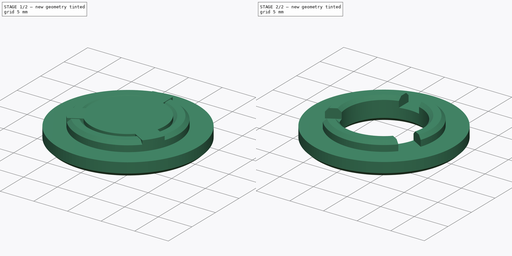
[diagram: build sequence overview — one tinted view per stage of 2, left to right]
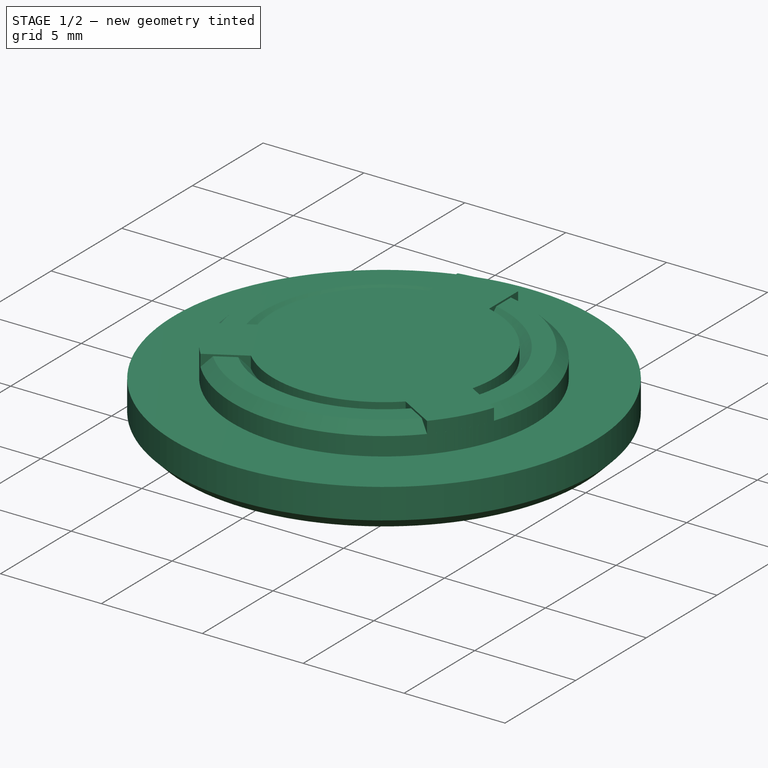
[diagram: stage 1 of 2 — iso view after this stage's code; geometry added in this stage tinted green]
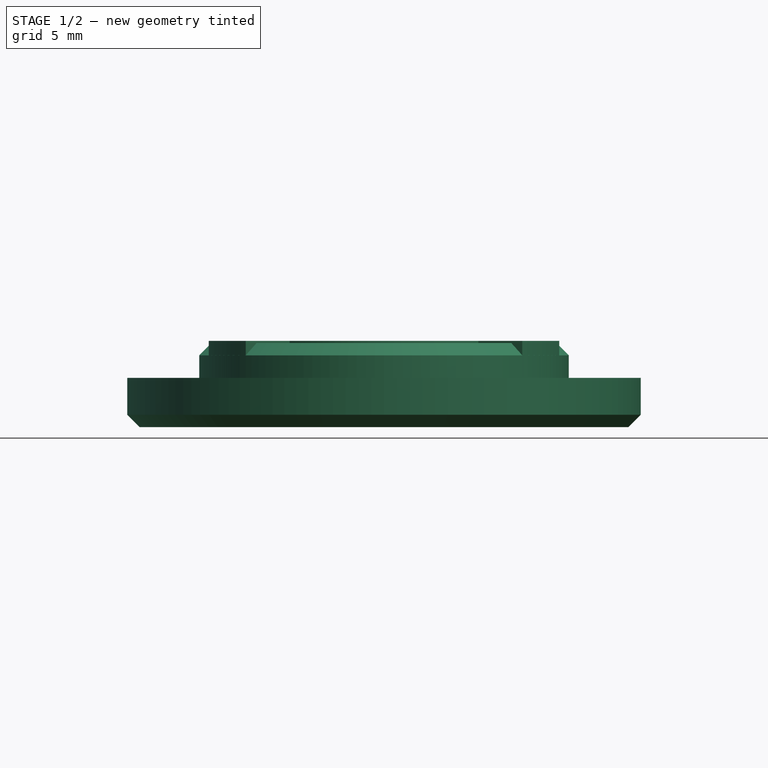
[diagram: stage 1 of 2 — front view after this stage's code; geometry added in this stage tinted green]
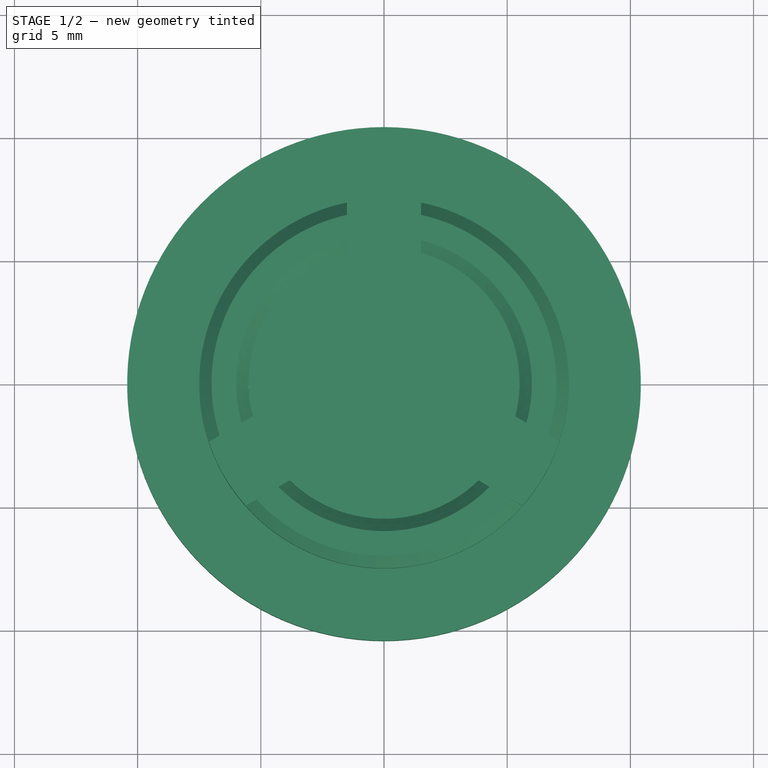
[diagram: stage 1 of 2 — top view after this stage's code; geometry added in this stage tinted green]
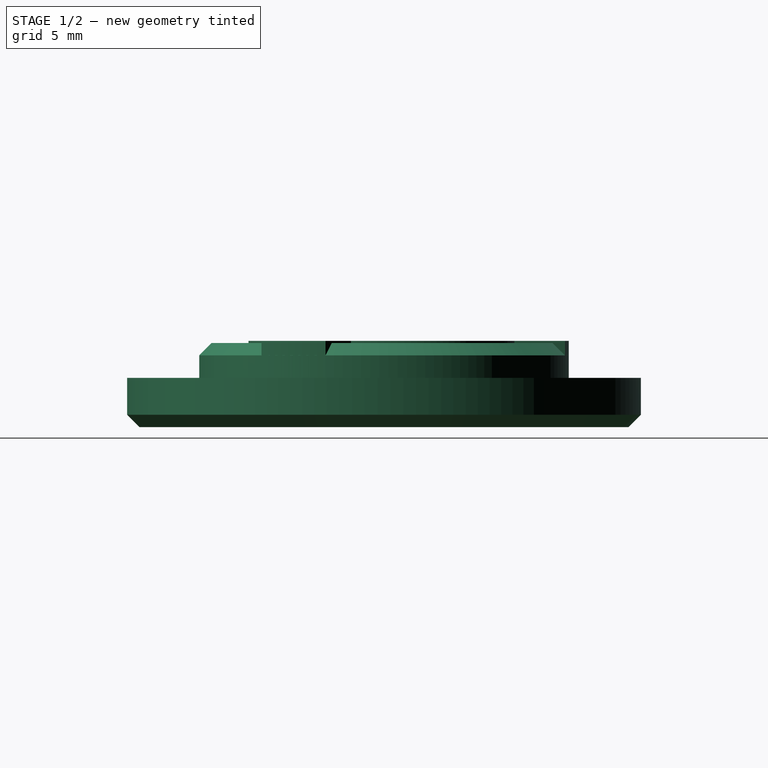
[diagram: stage 1 of 2 — right view after this stage's code; geometry added in this stage tinted green]
FCSTD DOCUMENT  (FreeCAD 0.20R29410 (Git))
Label: cell_protection_ring
License: All rights reserved
LicenseURL: http://en.wikipedia.org/wiki/All_rights_reserved
objects: Sketcher::SketchObject×2, Spreadsheet::Sheet×1, Part::Revolution×1, Part::Extrusion×1, Part::Cut×1
note: 5 computed .brp shape members not serialized (recipe doc carries the construction recipe); baked Part::Feature solids carry a one-line shape summary decoded from their .brp

FEATURE [Spreadsheet::Sheet] Spreadsheet  label="Param"
  cells = A2=Cell_Diameter; B2(Cell_Diameter)=20.85; A3=Disc_Height; B3(Disc_Height)=2; A4=Anode_Diameter; B4(Anode_Diameter)=11; A5=Ring_Diameter; B5(Ring_Diameter)=15; A6=Ring_Height; B6(Ring_Height)=1.5; A7=Leg_Width; B7(Leg_Width)=3; A8=Leg_Diameter; B8(Leg_Diameter)=15; A9=Chamfer; B9(Chamfer)=0.5
FEATURE [Sketcher::SketchObject] Sketch
  FullyConstrained = true
  Placement = pos=(0,0,0) rot=(0.57735,0.57735,0.57735;2.0944rad)
  expr: Constraints[16] = <<Param>>.Anode_Diameter / 2
  expr: Constraints[41] = <<Param>>.Chamfer
  expr: Constraints[46] = <<Param>>.Disc_Height
  expr: Constraints[47] = <<Param>>.Ring_Height
  expr: Constraints[48] = <<Param>>.Cell_Diameter / 2
  expr: Constraints[49] = <<Param>>.Ring_Diameter / 2
  sketch-geometry (18):
    g0: LineSegment StartX=-10.425 StartY=0.5 StartZ=0 EndX=-9.925 EndY=0 EndZ=0
    g1: LineSegment StartX=-9.925 StartY=0 StartZ=0 EndX=-6 EndY=0 EndZ=0
    g2: LineSegment StartX=-6 StartY=0 StartZ=0 EndX=-5.5 EndY=0.5 EndZ=0
    g3: LineSegment StartX=-5.5 StartY=0.5 StartZ=0 EndX=-5.5 EndY=2.91421 EndZ=0
    g4: LineSegment StartX=-5.5 StartY=2.91421 StartZ=0 EndX=-6 EndY=3.41421 EndZ=0
    g5: LineSegment StartX=-6 StartY=3.41421 StartZ=0 EndX=-7 EndY=3.41421 EndZ=0
    g6: LineSegment StartX=-7 StartY=3.41421 StartZ=0 EndX=-7.5 EndY=2.91421 EndZ=0
    g7: LineSegment StartX=-7.5 StartY=2.91421 StartZ=0 EndX=-7.5 EndY=2 EndZ=0
    g8: LineSegment StartX=-7.5 StartY=2 StartZ=0 EndX=-10.425 EndY=2 EndZ=0
    g9: LineSegment StartX=-10.425 StartY=2 StartZ=0 EndX=-10.425 EndY=0.5 EndZ=0
    g10: LineSegment StartX=-10.425 StartY=0.5 StartZ=0 EndX=-10.425 EndY=0 EndZ=0
    g11: LineSegment StartX=-10.425 StartY=0 StartZ=0 EndX=-9.925 EndY=0 EndZ=0
    g12: LineSegment StartX=-5.5 StartY=0.5 StartZ=0 EndX=-5.5 EndY=0 EndZ=0
    g13: LineSegment StartX=-6 StartY=0 StartZ=0 EndX=-5.5 EndY=0 EndZ=0
    g14: LineSegment StartX=-7.5 StartY=2.91421 StartZ=0 EndX=-7.5 EndY=3.41421 EndZ=0
    g15: LineSegment StartX=-7 StartY=3.41421 StartZ=0 EndX=-7.5 EndY=3.41421 EndZ=0
    g16: LineSegment StartX=-6 StartY=3.41421 StartZ=0 EndX=-5.5 EndY=3.41421 EndZ=0
    g17: LineSegment StartX=-5.5 StartY=2.91421 StartZ=0 EndX=-5.5 EndY=3.41421 EndZ=0
  constraints (50):
    c: Coincident(g1,g0)
    c: Horizontal(g1)
    c: Coincident(g2,g1)
    c: Coincident(g3,g2)
    c: Vertical(g3)
    c: Coincident(g4,g3)
    c: Coincident(g5,g4)
    c: Horizontal(g5)
    c: Coincident(g6,g5)
    c: Coincident(g7,g6)
    c: Vertical(g7)
    c: Coincident(g8,g7)
    c: Horizontal(g8)
    c: Coincident(g9,g8)
    c: Coincident(g9,g0)
    c: Vertical(g9)
    c: Distance(g2,g-2) = 5.5
    c: Coincident(g10,g0)
    c: Vertical(g10)
    c: Coincident(g11,g10)
    c: Coincident(g11,g0)
    c: Coincident(g12,g2)
    c: Vertical(g12)
    c: Coincident(g13,g12)
    c: Horizontal(g13)
    c: Equal(g13,g12)
    c: Equal(g11,g10)
    c: Horizontal(g11)
    c: Coincident(g1,g13)
    c: Coincident(g14,g6)
    c: Vertical(g14)
    c: Coincident(g15,g5)
    c: Coincident(g15,g14)
    c: Horizontal(g15)
    c: Coincident(g16,g4)
    c: Horizontal(g16)
    c: Coincident(g17,g3)
    c: Coincident(g17,g16)
    c: Vertical(g17)
    c: Equal(g15,g14)
    c: Equal(g16,g17)
    c: Distance(g13) = 0.5
    c: Equal(g16,g13)
    c: Equal(g13,g15)
    c: Equal(g15,g11)
    c: PointOnObject(g1,g-1)
    c: Distance(g8,g-1) = 2
    c: Distance(g5,g7) = 1.5
    c: Distance(g8,g-2) = 10.425
    c: Distance(g7,g-2) = 7.5
FEATURE [Part::Revolution] Revolve
  Angle = 360
  Axis = (0,0,1)
  Base = (0,0,0)
  FaceMakerClass = Part::FaceMakerBullseye
  Solid = true
  Source = -> Sketch
  Symmetric = true
FEATURE [Sketcher::SketchObject] Sketch001
  FullyConstrained = true
  expr: Constraints[35] = <<Param>>.Anode_Diameter
  expr: Constraints[38] = <<Param>>.Leg_Diameter
  expr: Constraints[39] = <<Param>>.Leg_Width
  expr: Constraints[40] = <<Param>>.Leg_Width
  expr: Constraints[41] = <<Param>>.Leg_Width
  sketch-geometry (27):
    g0: ArcOfCircle CenterX=0 CenterY=0 CenterZ=0 NormalX=0 NormalY=0 NormalZ=1 AngleXU=0 Radius=7.5 StartAngle=1.36944 EndAngle=1.77215
    g1: ArcOfCircle CenterX=0 CenterY=0 CenterZ=0 NormalX=0 NormalY=0 NormalZ=1 AngleXU=0 Radius=5.5 StartAngle=6.03581 EndAngle=7.57776
    g2: ArcOfCircle CenterX=0 CenterY=0 CenterZ=0 NormalX=0 NormalY=0 NormalZ=1 AngleXU=0 Radius=5.5 StartAngle=1.84702 EndAngle=3.38896
    g3: ArcOfCircle CenterX=0 CenterY=0 CenterZ=0 NormalX=0 NormalY=0 NormalZ=1 AngleXU=0 Radius=7.5 StartAngle=3.46383 EndAngle=3.86655
    g4: ArcOfCircle CenterX=0 CenterY=0 CenterZ=0 NormalX=0 NormalY=0 NormalZ=1 AngleXU=0 Radius=7.5 StartAngle=5.55823 EndAngle=5.96094
    g5: ArcOfCircle CenterX=0 CenterY=0 CenterZ=0 NormalX=0 NormalY=0 NormalZ=1 AngleXU=0 Radius=5.5 StartAngle=3.94142 EndAngle=5.48336
    g6: LineSegment StartX=1.5 StartY=7.34847 StartZ=0 EndX=1.5 EndY=5.2915 EndZ=0
    g7: LineSegment StartX=-1.5 StartY=7.34847 StartZ=0 EndX=-1.5 EndY=5.2915 EndZ=0
    g8: LineSegment StartX=7.11396 StartY=-2.3752 StartZ=0 EndX=5.33258 EndY=-1.34671 EndZ=0
    g9: LineSegment StartX=5.61396 StartY=-4.97327 StartZ=0 EndX=3.83258 EndY=-3.94479 EndZ=0
    g10: LineSegment StartX=-5.61396 StartY=-4.97327 StartZ=0 EndX=-3.83258 EndY=-3.94479 EndZ=0
    g11: LineSegment StartX=-5.33258 StartY=-1.34671 StartZ=0 EndX=-7.11396 EndY=-2.3752 EndZ=0
    g12: LineSegment StartX=0 StartY=6.31999 StartZ=0 EndX=0 EndY=0 EndZ=0
    g13: LineSegment StartX=0 StartY=0 StartZ=0 EndX=-5.47327 EndY=-3.15999 EndZ=0
    g14: LineSegment StartX=0 StartY=0 StartZ=0 EndX=5.47327 EndY=-3.15999 EndZ=0
    g15: LineSegment StartX=-5.47327 StartY=-3.15999 StartZ=0 EndX=-5.61396 EndY=-4.97327 EndZ=0
    g16: LineSegment StartX=-5.47327 StartY=-3.15999 StartZ=0 EndX=-7.11396 EndY=-2.3752 EndZ=0
    g17: LineSegment StartX=-5.47327 StartY=-3.15999 StartZ=0 EndX=-5.33258 EndY=-1.34671 EndZ=0
    g18: LineSegment StartX=-5.47327 StartY=-3.15999 StartZ=0 EndX=-3.83258 EndY=-3.94479 EndZ=0
    g19: LineSegment StartX=-1.5 StartY=5.2915 StartZ=0 EndX=0 EndY=6.31999 EndZ=0
    g20: LineSegment StartX=1.5 StartY=5.2915 StartZ=0 EndX=0 EndY=6.31999 EndZ=0
    g21: LineSegment StartX=1.5 StartY=7.34847 StartZ=0 EndX=0 EndY=6.31999 EndZ=0
    g22: LineSegment StartX=-1.5 StartY=7.34847 StartZ=0 EndX=0 EndY=6.31999 EndZ=0
    g23: LineSegment StartX=3.83258 StartY=-3.94479 StartZ=0 EndX=5.47327 EndY=-3.15999 EndZ=0
    g24: LineSegment StartX=5.61396 StartY=-4.97327 StartZ=0 EndX=5.47327 EndY=-3.15999 EndZ=0
    g25: LineSegment StartX=5.33258 StartY=-1.34671 StartZ=0 EndX=5.47327 EndY=-3.15999 EndZ=0
    g26: LineSegment StartX=5.47327 StartY=-3.15999 StartZ=0 EndX=7.11396 EndY=-2.3752 EndZ=0
  constraints (69):
    c: Coincident(g0,g-1)
    c: Coincident(g1,g0)
    c: Coincident(g2,g0)
    c: Coincident(g3,g0)
    c: Coincident(g4,g0)
    c: Coincident(g5,g0)
    c: Coincident(g6,g0)
    c: Coincident(g6,g1)
    c: Coincident(g7,g0)
    c: Coincident(g7,g2)
    c: Coincident(g8,g4)
    c: Coincident(g8,g1)
    c: Coincident(g9,g4)
    c: Coincident(g9,g5)
    c: Coincident(g10,g3)
    c: Coincident(g10,g5)
    c: Coincident(g11,g2)
    c: Coincident(g11,g3)
    c: Coincident(g12,g0)
    c: Coincident(g13,g0)
    c: Coincident(g14,g0)
    c: Coincident(g15,g13)
    c: Coincident(g15,g3)
    c: Coincident(g16,g13)
    c: Coincident(g16,g3)
    c: Coincident(g17,g13)
    c: Coincident(g17,g2)
    c: Coincident(g18,g13)
    c: Coincident(g18,g5)
    c: Parallel(g15,g17)
    c: Parallel(g18,g16)
    c: Parallel(g13,g11)
    c: Parallel(g13,g10)
    c: Equal(g5,g2)
    c: Equal(g5,g1)
    c: Diameter(g5) = 11
    c: Equal(g0,g3)
    c: Equal(g0,g4)
    c: Diameter(g0) = 15
    c: Distance(g3,g3) = 3
    c: Distance(g4,g4) = 3
    c: Distance(g0,g0) = 3
    c: Coincident(g19,g2)
    c: Coincident(g19,g12)
    c: Coincident(g20,g1)
    c: Coincident(g20,g12)
    c: Coincident(g21,g0)
    c: Coincident(g21,g12)
    c: Coincident(g22,g0)
    c: Coincident(g22,g12)
    c: Parallel(g21,g19)
    c: Parallel(g22,g20)
    c: Parallel(g12,g6)
    c: Parallel(g12,g7)
    c: Coincident(g23,g5)
    c: Coincident(g23,g14)
    c: Coincident(g24,g4)
    c: Coincident(g24,g14)
    c: Coincident(g25,g1)
    c: Coincident(g25,g14)
    c: Coincident(g26,g14)
    c: Coincident(g26,g4)
    c: Parallel(g24,g25)
    c: Parallel(g23,g26)
    c: Parallel(g14,g9)
    c: Parallel(g14,g8)
    c: Angle(g14,g12) = 2.0944
    c: Angle(g12,g13) = 2.0944
    c: Parallel(g12,g-2)
FEATURE [Part::Extrusion] Extrude
  Base = -> Sketch001
  Dir = (0,0,1)
  DirMode = 2
  FaceMakerClass = Part::FaceMakerBullseye
  LengthFwd = 3.5
  LengthRev = -2
  Solid = true
  Symmetric = false
  expr: LengthFwd = <<Param>>.Disc_Height + <<Param>>.Ring_Height
  expr: LengthRev = -<<Param>>.Disc_Height
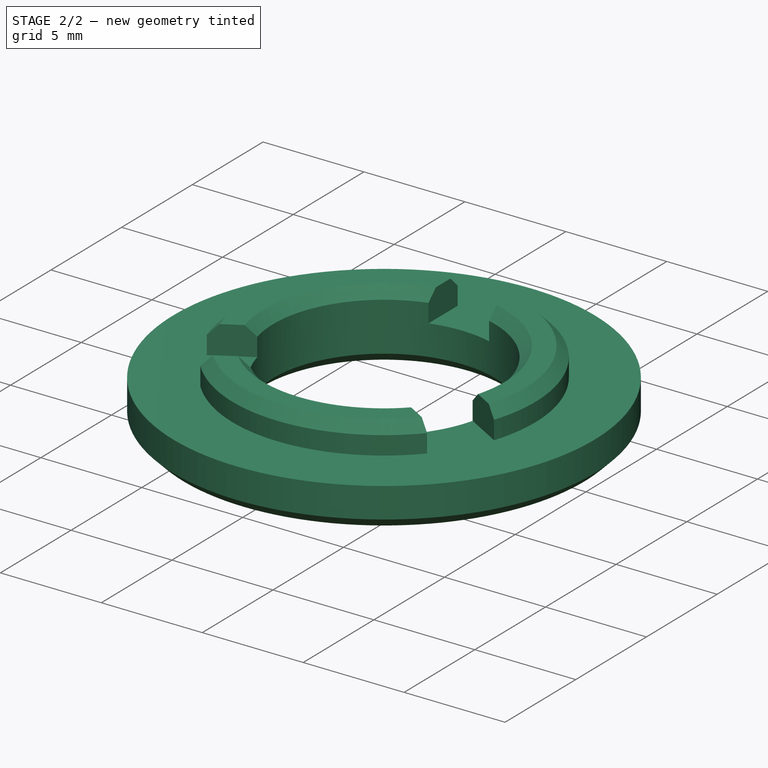
[diagram: stage 2 of 2 — iso view after this stage's code; geometry added in this stage tinted green]
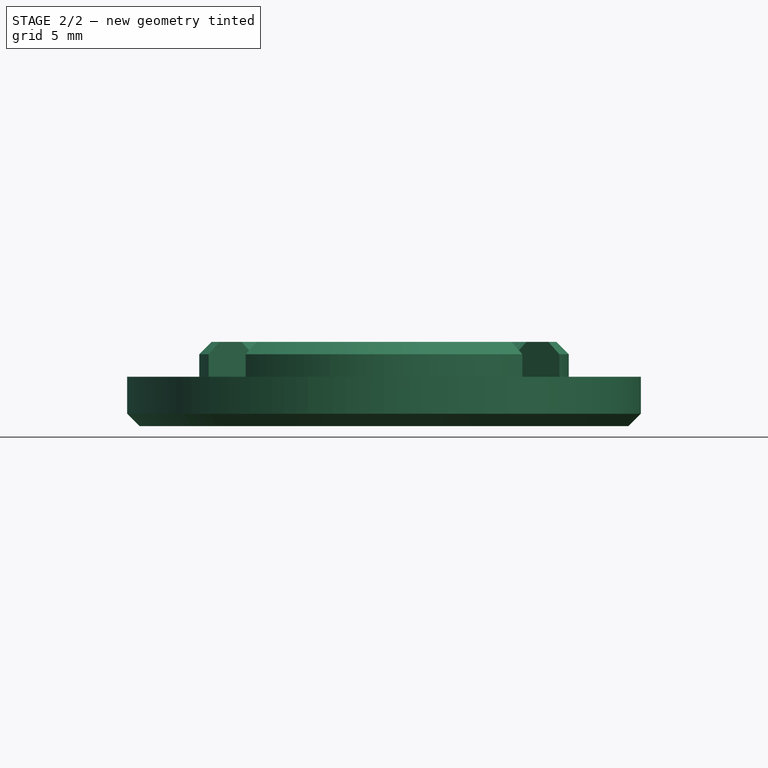
[diagram: stage 2 of 2 — front view after this stage's code; geometry added in this stage tinted green]
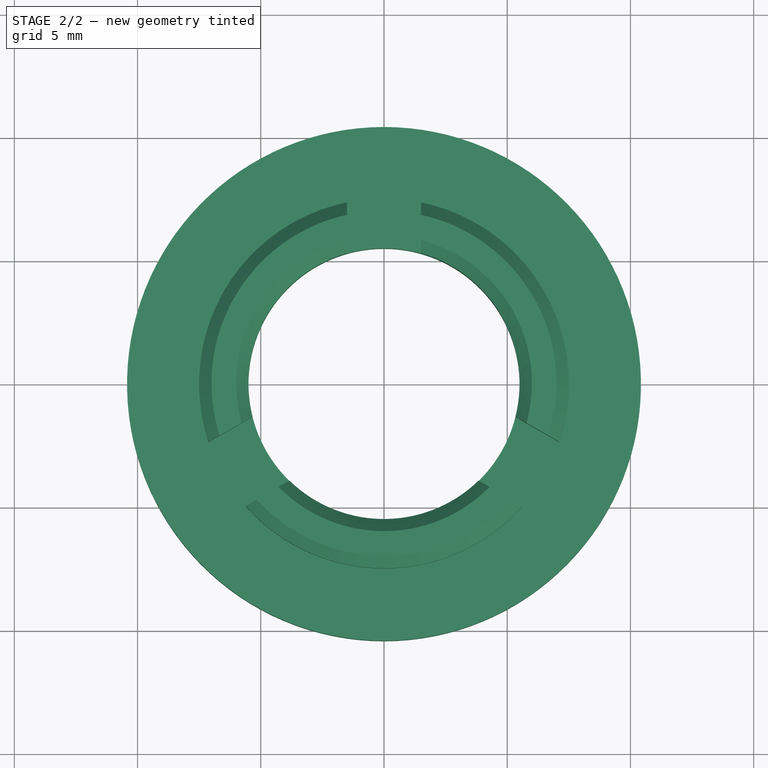
[diagram: stage 2 of 2 — top view after this stage's code; geometry added in this stage tinted green]
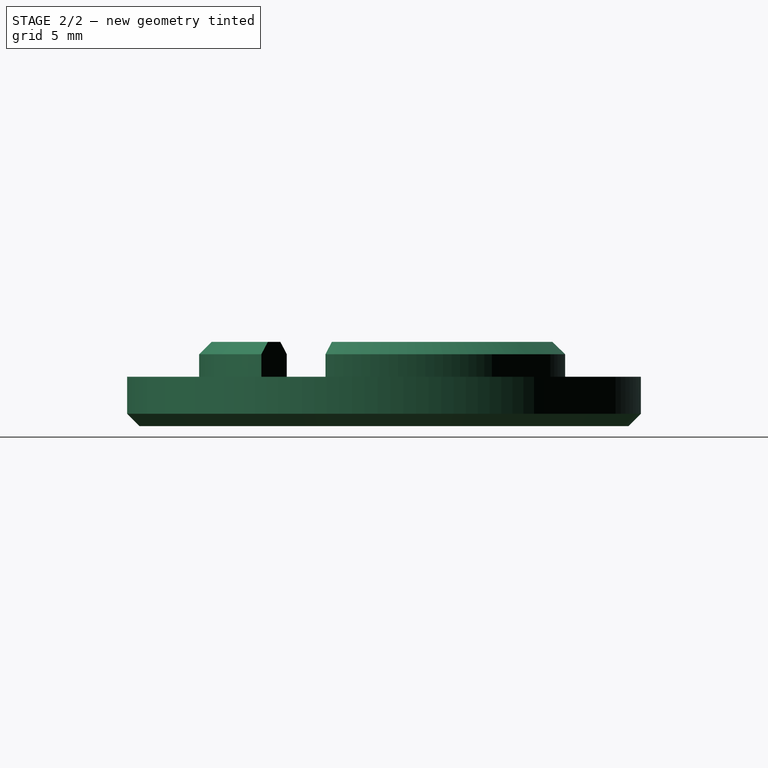
[diagram: stage 2 of 2 — right view after this stage's code; geometry added in this stage tinted green]
FEATURE [Part::Cut] Cut
  Base = -> Revolve
  Tool = -> Extrude
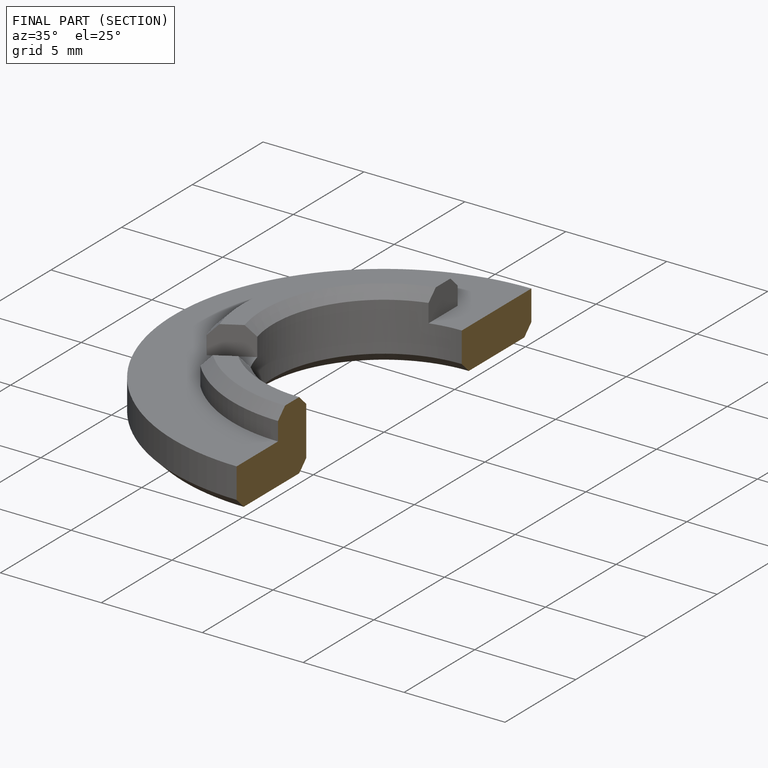
[diagram: finished part — half-section view (interior)]
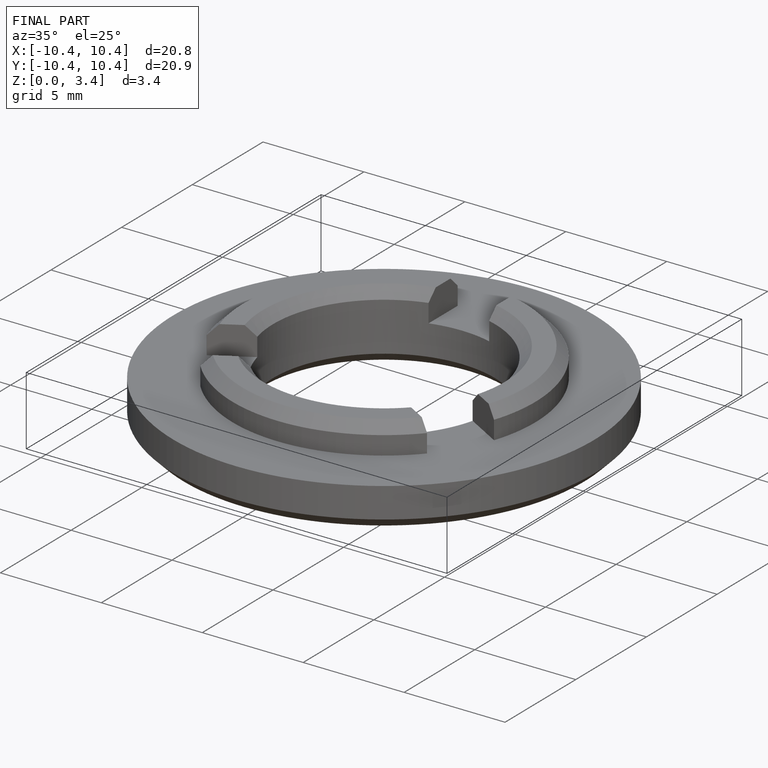
[diagram: finished part — iso view with bounding-box wireframe]
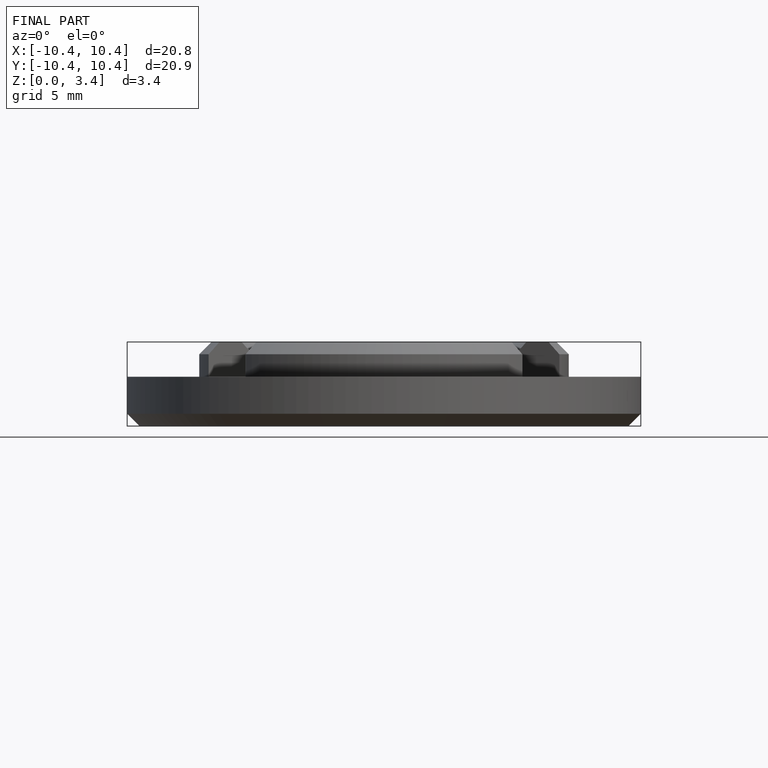
[diagram: finished part — front view with bounding-box wireframe]
